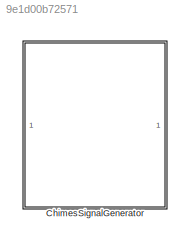
MODEL slx_9e1d00b72571
KIND library
CONFIG AbsTol = auto
CONFIG EnableMultiTasking = off
CONFIG FixedStep = auto
CONFIG MaxStep = auto
CONFIG MinStep = auto
CONFIG RelTol = 1e-3
CONFIG SampleTimeConstraint = Unconstrained
CONFIG SolverName = VariableStepAuto
CONFIG StartTime = 0.0
CONFIG StopTime = 10.0
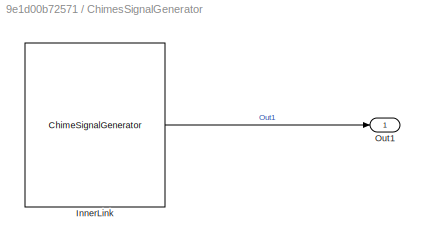
BLOCK [SubSystem] ChimesSignalGenerator
BLOCK [Reference] ChimesSignalGenerator/InnerLink  REF=ChimeSignalGeneratorLibBtc/ChimeSignalGenerator
  SourceBlock = ChimeSignalGeneratorLibBtc/ChimeSignalGenerator
  SourceProductName = Bose Blocklib
  SourceType = Chimes ChimeSignalGenerator
BLOCK [Outport] ChimesSignalGenerator/Out1
LINE ChimesSignalGenerator/InnerLink:1 -> ChimesSignalGenerator/Out1:1
